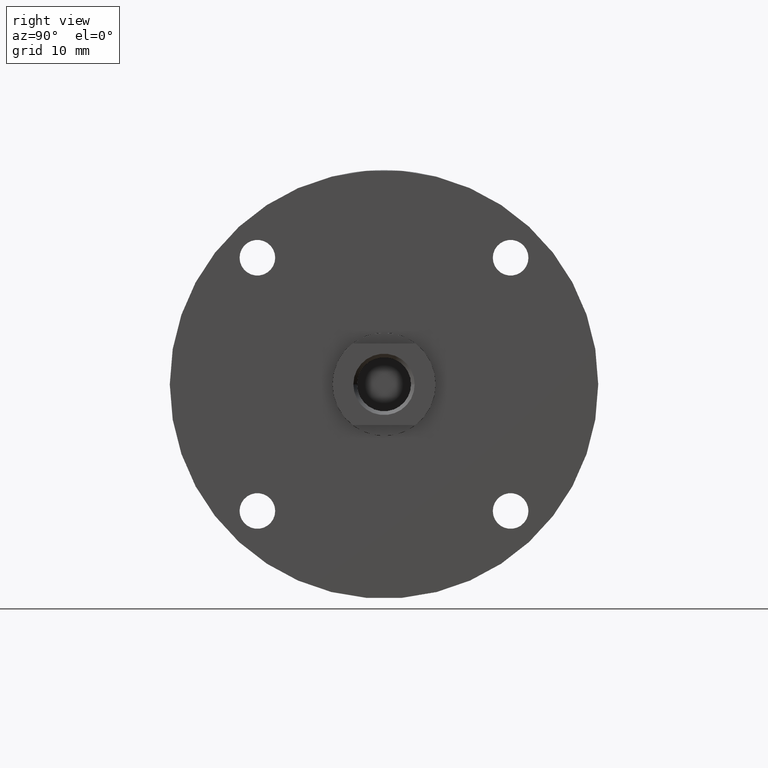
[diagram: clean part render]
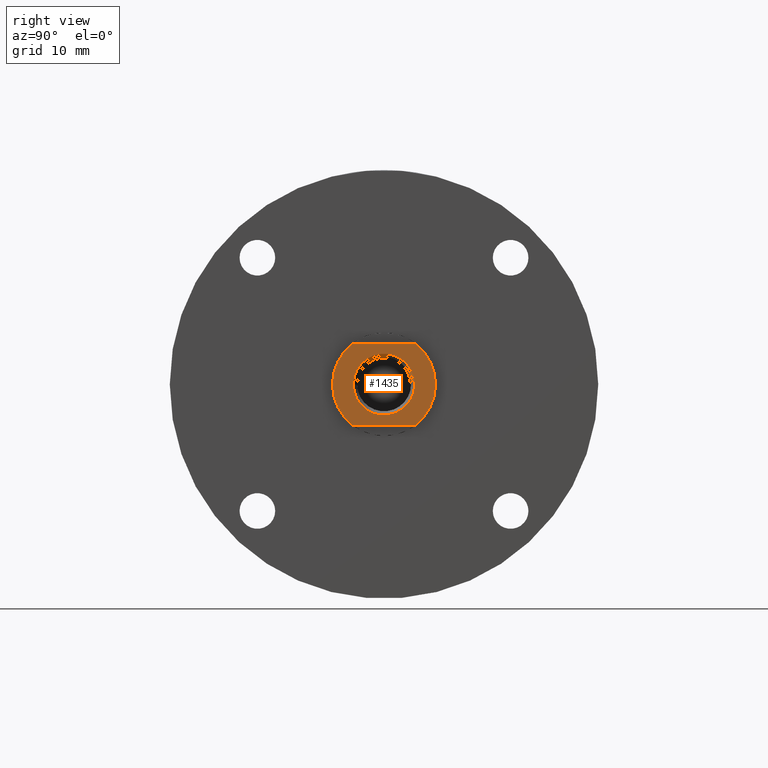
[diagram: same view with one face highlighted and labeled with its STEP entity id]
A machine part, right view. The second image highlights one B-rep face of the part: STEP entity #1435.
In plain terms, the highlighted planar face has unit normal (-1, 0, -0).
Its self-contained STEP definition (entity closure, byte-faithful):
#23 = DIRECTION ( 'NONE',  ( -0.0000000000000000000, 1.000000000000000000, -0.0000000000000000000 ) ) ;
#37 = VERTEX_POINT ( 'NONE', #1820 ) ;
#158 = LINE ( 'NONE', #1765, #986 ) ;
#173 = AXIS2_PLACEMENT_3D ( 'NONE', #3607, #1465, #3956 ) ;
#174 = CARTESIAN_POINT ( 'NONE',  ( 0.0000000000000000000, 2.228000000000000200, 0.0000000000000000000 ) ) ;
#180 = AXIS2_PLACEMENT_3D ( 'NONE', #1833, #4319, #2199 ) ;
#266 = CARTESIAN_POINT ( 'NONE',  ( 0.0000000000000000000, 2.228000000000000200, 0.0000000000000000000 ) ) ;
#285 = EDGE_LOOP ( 'NONE', ( #3707, #3159 ) ) ;
#352 = CARTESIAN_POINT ( 'NONE',  ( 0.0000000000000000000, 2.228000000000000200, 0.0000000000000000000 ) ) ;
#394 = DIRECTION ( 'NONE',  ( 0.0000000000000000000, 1.000000000000000000, 0.0000000000000000000 ) ) ;
#401 = FACE_BOUND ( 'NONE', #285, .T. ) ;
#465 = AXIS2_PLACEMENT_3D ( 'NONE', #2136, #23, #2485 ) ;
#495 = VERTEX_POINT ( 'NONE', #3853 ) ;
#522 = DIRECTION ( 'NONE',  ( 0.0000000000000000000, 0.0000000000000000000, 1.000000000000000000 ) ) ;
#620 = DIRECTION ( 'NONE',  ( 0.0000000000000000000, 0.0000000000000000000, -1.000000000000000000 ) ) ;
#648 = VERTEX_POINT ( 'NONE', #3803 ) ;
#711 = DIRECTION ( 'NONE',  ( 0.0000000000000000000, 0.0000000000000000000, 1.000000000000000000 ) ) ;
#720 = CARTESIAN_POINT ( 'NONE',  ( 0.2500000000000000000, 2.228000000000000200, -0.1916376789673679100 ) ) ;
#951 = PLANE ( 'NONE',  #2592 ) ;
#986 = VECTOR ( 'NONE', #2479, 39.37007874015748100 ) ;
#1155 = VERTEX_POINT ( 'NONE', #1288 ) ;
#1187 = CARTESIAN_POINT ( 'NONE',  ( 0.0000000000000000000, 2.228000000000000200, 0.1874999999999999700 ) ) ;
#1288 = CARTESIAN_POINT ( 'NONE',  ( 0.2500000000000000000, 2.228000000000000200, 0.1916376789673679700 ) ) ;
#1369 = EDGE_CURVE ( 'NONE', #1155, #3933, #2502, .T. ) ;
#1419 = VERTEX_POINT ( 'NONE', #2346 ) ;
#1435 = ADVANCED_FACE ( 'PLANAR_0', ( #401, #4167 ), #951, .F. ) ;
#1465 = DIRECTION ( 'NONE',  ( -0.0000000000000000000, 1.000000000000000000, -0.0000000000000000000 ) ) ;
#1564 = VECTOR ( 'NONE', #1957, 39.37007874015748100 ) ;
#1742 = CARTESIAN_POINT ( 'NONE',  ( 3.857637417314162700E-017, 2.228000000000000200, -0.3150000000000000000 ) ) ;
#1765 = CARTESIAN_POINT ( 'NONE',  ( -0.2500000000000000000, 2.228000000000000200, -0.6300000000000000000 ) ) ;
#1820 = CARTESIAN_POINT ( 'NONE',  ( 2.296212748401286800E-017, 2.228000000000000200, -0.1874999999999999700 ) ) ;
#1833 = CARTESIAN_POINT ( 'NONE',  ( 0.0000000000000000000, 2.228000000000000200, 0.0000000000000000000 ) ) ;
#1957 = DIRECTION ( 'NONE',  ( 0.0000000000000000000, 0.0000000000000000000, -1.000000000000000000 ) ) ;
#2075 = ORIENTED_EDGE ( 'NONE', *, *, #4077, .T. ) ;
#2125 = AXIS2_PLACEMENT_3D ( 'NONE', #2514, #394, #2872 ) ;
#2136 = CARTESIAN_POINT ( 'NONE',  ( 0.0000000000000000000, 2.228000000000000200, 0.0000000000000000000 ) ) ;
#2177 = CIRCLE ( 'NONE', #173, 0.1874999999999999700 ) ;
#2199 = DIRECTION ( 'NONE',  ( 0.0000000000000000000, 0.0000000000000000000, 1.000000000000000000 ) ) ;
#2346 = CARTESIAN_POINT ( 'NONE',  ( 0.0000000000000000000, 2.228000000000000200, 0.3150000000000000000 ) ) ;
#2398 = EDGE_CURVE ( 'NONE', #3631, #37, #2177, .T. ) ;
#2479 = DIRECTION ( 'NONE',  ( 0.0000000000000000000, 0.0000000000000000000, 1.000000000000000000 ) ) ;
#2485 = DIRECTION ( 'NONE',  ( 0.0000000000000000000, 0.0000000000000000000, 1.000000000000000000 ) ) ;
#2489 = ORIENTED_EDGE ( 'NONE', *, *, #2848, .T. ) ;
#2502 = LINE ( 'NONE', #4094, #1564 ) ;
#2514 = CARTESIAN_POINT ( 'NONE',  ( 0.0000000000000000000, 2.228000000000000200, 0.0000000000000000000 ) ) ;
#2528 = ORIENTED_EDGE ( 'NONE', *, *, #4392, .T. ) ;
#2592 = AXIS2_PLACEMENT_3D ( 'NONE', #266, #2738, #620 ) ;
#2648 = DIRECTION ( 'NONE',  ( 0.0000000000000000000, 1.000000000000000000, 0.0000000000000000000 ) ) ;
#2738 = DIRECTION ( 'NONE',  ( 0.0000000000000000000, -1.000000000000000000, -0.0000000000000000000 ) ) ;
#2759 = VERTEX_POINT ( 'NONE', #1742 ) ;
#2810 = EDGE_CURVE ( 'NONE', #37, #3631, #3924, .T. ) ;
#2821 = DIRECTION ( 'NONE',  ( 0.0000000000000000000, 1.000000000000000000, 0.0000000000000000000 ) ) ;
#2848 = EDGE_CURVE ( 'NONE', #495, #1419, #3709, .T. ) ;
#2850 = EDGE_LOOP ( 'NONE', ( #2968, #3358, #2528, #3570, #2489, #2075 ) ) ;
#2872 = DIRECTION ( 'NONE',  ( 0.0000000000000000000, 0.0000000000000000000, 1.000000000000000000 ) ) ;
#2968 = ORIENTED_EDGE ( 'NONE', *, *, #1369, .T. ) ;
#3159 = ORIENTED_EDGE ( 'NONE', *, *, #2810, .F. ) ;
#3358 = ORIENTED_EDGE ( 'NONE', *, *, #3745, .T. ) ;
#3570 = ORIENTED_EDGE ( 'NONE', *, *, #3929, .T. ) ;
#3607 = CARTESIAN_POINT ( 'NONE',  ( 0.0000000000000000000, 2.228000000000000200, 0.0000000000000000000 ) ) ;
#3631 = VERTEX_POINT ( 'NONE', #1187 ) ;
#3689 = AXIS2_PLACEMENT_3D ( 'NONE', #174, #2648, #522 ) ;
#3707 = ORIENTED_EDGE ( 'NONE', *, *, #2398, .F. ) ;
#3709 = CIRCLE ( 'NONE', #2125, 0.3150000000000000000 ) ;
#3745 = EDGE_CURVE ( 'NONE', #3933, #2759, #4019, .T. ) ;
#3803 = CARTESIAN_POINT ( 'NONE',  ( -0.2500000000000000000, 2.228000000000000200, -0.1916376789673679700 ) ) ;
#3853 = CARTESIAN_POINT ( 'NONE',  ( -0.2500000000000000000, 2.228000000000000200, 0.1916376789673679100 ) ) ;
#3924 = CIRCLE ( 'NONE', #465, 0.1874999999999999700 ) ;
#3929 = EDGE_CURVE ( 'NONE', #648, #495, #158, .T. ) ;
#3933 = VERTEX_POINT ( 'NONE', #720 ) ;
#3956 = DIRECTION ( 'NONE',  ( 0.0000000000000000000, 0.0000000000000000000, 1.000000000000000000 ) ) ;
#3979 = AXIS2_PLACEMENT_3D ( 'NONE', #352, #2821, #711 ) ;
#4019 = CIRCLE ( 'NONE', #3689, 0.3150000000000000000 ) ;
#4032 = CIRCLE ( 'NONE', #3979, 0.3150000000000000000 ) ;
#4077 = EDGE_CURVE ( 'NONE', #1419, #1155, #4415, .T. ) ;
#4094 = CARTESIAN_POINT ( 'NONE',  ( 0.2500000000000000000, 2.228000000000000200, 0.6300000000000000000 ) ) ;
#4167 = FACE_OUTER_BOUND ( 'NONE', #2850, .T. ) ;
#4319 = DIRECTION ( 'NONE',  ( 0.0000000000000000000, 1.000000000000000000, 0.0000000000000000000 ) ) ;
#4392 = EDGE_CURVE ( 'NONE', #2759, #648, #4032, .T. ) ;
#4415 = CIRCLE ( 'NONE', #180, 0.3150000000000000000 ) ;